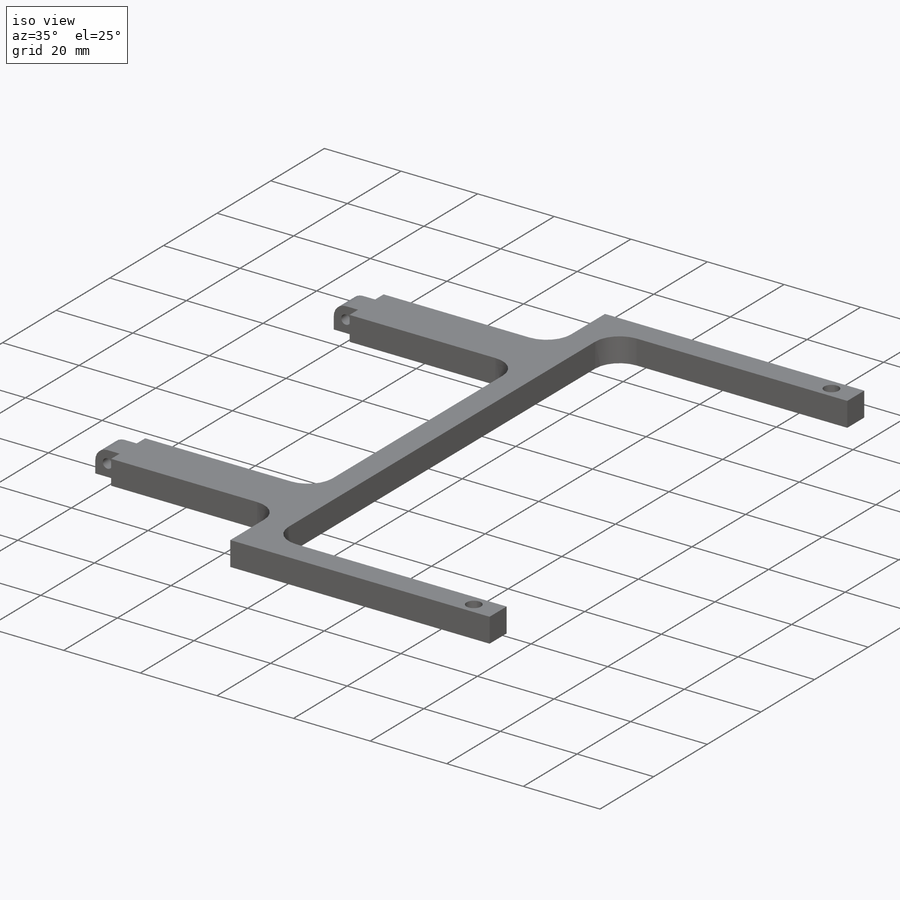
[diagram: iso view]
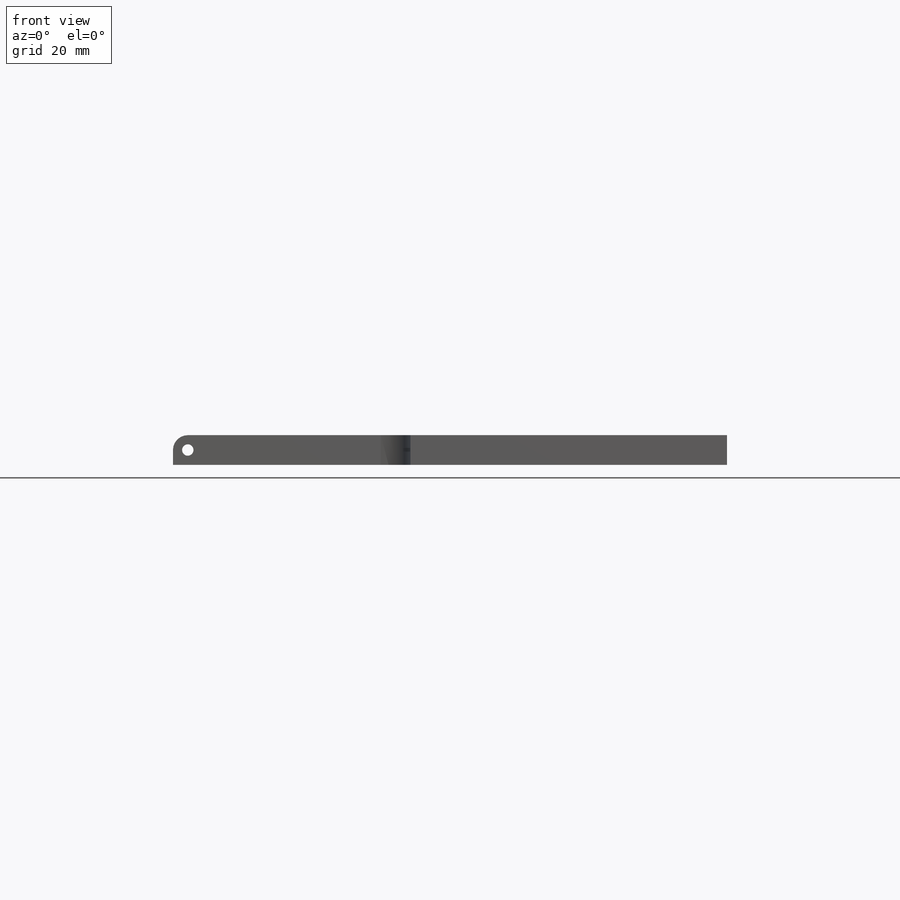
[diagram: front view]
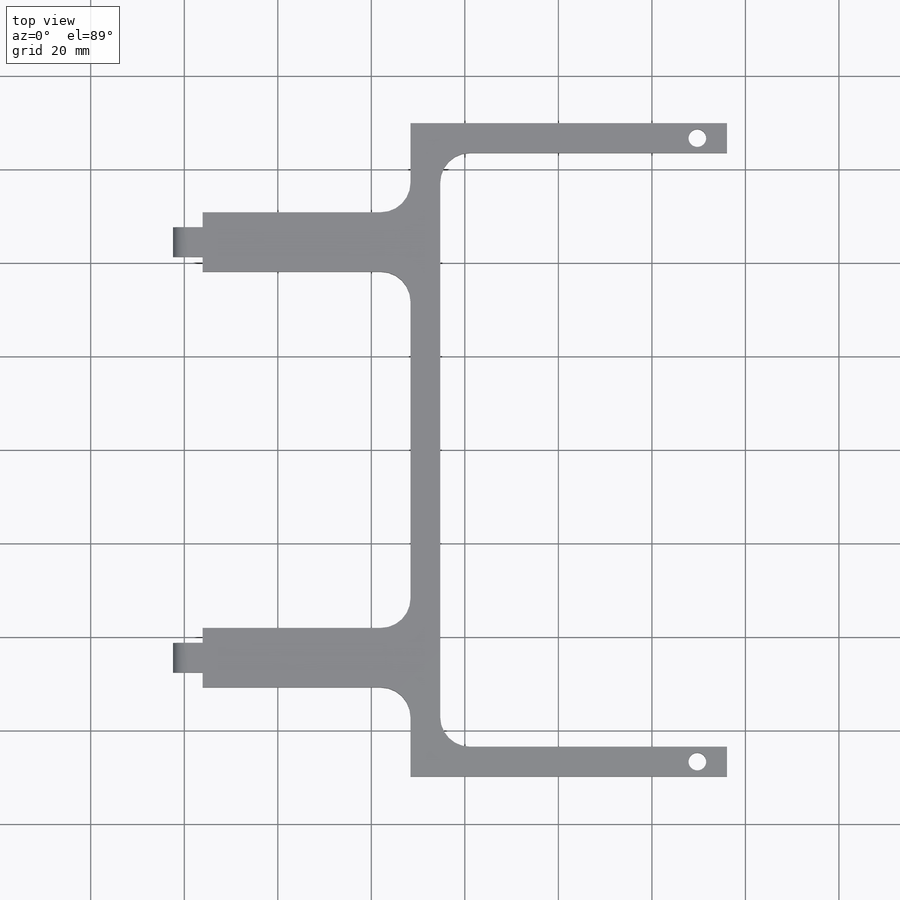
[diagram: top view]
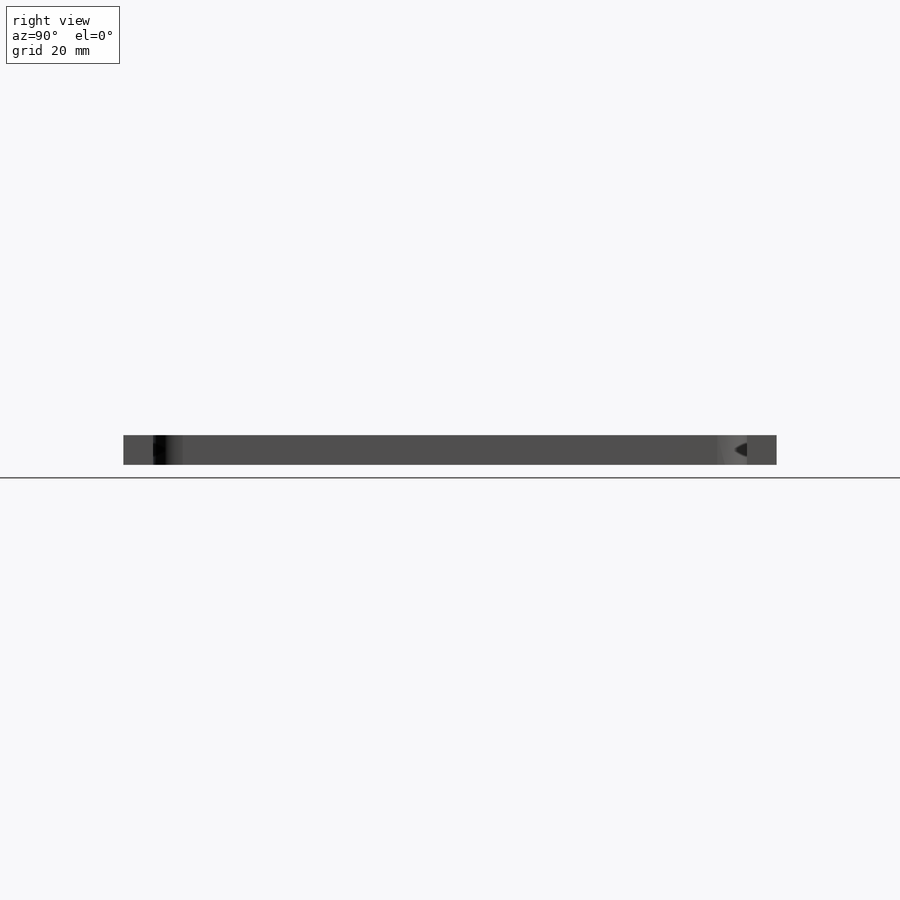
[diagram: right view]
SOLIDWORKS PART (.sldprt)
format: sldprt  version: not decoded by parser v0  size: 474,624 bytes
history: native  units: mm
features: sketch x7, extrude x2, fillet x2, hole x2, material x1, cut_extrude x1 (+11 scaffold rows collapsed)
feature tree (26):
  scaffold x11  (default folders/planes/origin — collapsed)
  material  "6061 Alloy"
  sketch  "Sketch1"  dims[D1=112.141mm D2=139.7mm]
  extrude  "Extrude1"  Depth=6.35mm
  sketch  "Sketch2"  dims[D1=101.6mm D2=44.45mm D3=6.35mm D4=6.35mm D5=6.35mm D6=12.7mm D7=12.7mm]
  cut_extrude  "Cut-Extrude1"  Depth=6.35mm
  fillet  "Fillet1"  Radius=6.35mm
  sketch  "Sketch5"  dims[D1=6.35mm D2=3.175mm D3=6.35mm D4=3.175mm]
  extrude  "Extrude2"  Depth=6.35mm
  fillet  "Fillet2"  Radius=3.175mm
  hole  "#6 Clearance Hole1"  Diameter=3.7973mm Depth=12.7mm
  sketch  "3DSketch1"  dims[D1=3.175mm D2=3.175mm D3=6.35mm D4=6.35mm]
  sketch  "Sketch6"  dims[hole-wizard template sketch: 50 standard entries collapsed; hole parameters above]
  hole  "#2 Clearance Hole1"  Diameter=2.4384mm Depth=117.475mm
  sketch  "3DSketch2"  dims[D1=3.175mm D2=3.175mm]
  sketch  "Sketch8"  dims[hole-wizard template sketch: 60 standard entries collapsed; hole parameters kept: c18.Thru Hole Depth=117.475mm]
decode coverage: 14 of 14 modeling features carry decoded parameters
note: ~ marks probable driven/reference dimensions
note: suppression state not decoded; provenance and decode notes live in map.json
